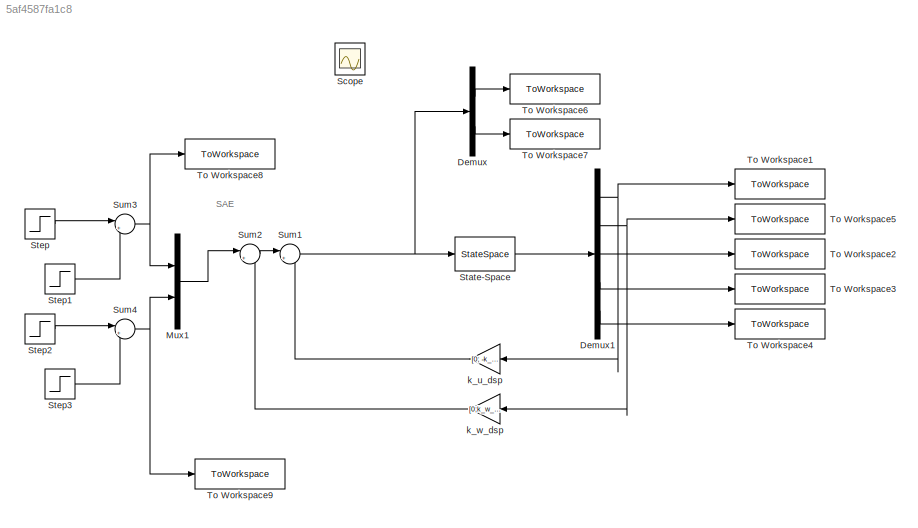
MODEL slx_5af4587fa1c8
KIND model
CONFIG AbsTol = auto
CONFIG EnableMultiTasking = off
CONFIG FixedStep = auto
CONFIG MaxStep = auto
CONFIG MinStep = auto
CONFIG RelTol = 1e-3
CONFIG SampleTimeConstraint = Unconstrained
CONFIG Solver = VariableStepAuto
CONFIG SolverName = VariableStepAuto
CONFIG StartTime = 0.0
CONFIG StopTime = 10.0
BLOCK [Demux] Demux
  Outputs = 2
  Ports = [1, 2]
BLOCK [Demux] Demux1
  Outputs = 5
  Ports = [1, 5]
BLOCK [Mux] Mux1
  DisplayOption = bar
  Inputs = 2
  Ports = [2, 1]
BLOCK [Scope] Scope
  Floating = off
  IOType = viewer
  NumInputPorts = 1
  Ports = []
  ScopeSpecificationString = Simulink.scopes.TimeScopeBlockCfg('CurrentConfiguration', extmgr.ConfigurationSet(extmgr.Configuration('Core','General UI',true),extmgr.Configuration('Core','Source UI',true),extmgr.Configuration('Sources','WiredSimulink',true),extmgr.Configuration('Visuals','Time Domain',true,'SerializedDisplays',{struct('MinYLimReal','-13.95588','MaxYLimReal','27.3534','YLabelReal','','MinYLimMag','0.00000','Max...<+1361ch>
BLOCK [StateSpace] State-Space
  A = a_h
  B = b_h_sf
  C = c_h
  D = d_h_sf
  InitialCondition = x0_h
  Ports = [1, 1]
BLOCK [Step] Step
  After = de_step
  SampleTime = 0
  Time = t_de_ini
BLOCK [Step] Step1
  After = -de_step
  SampleTime = 0
  Time = t_de_ini+t_de_step
BLOCK [Step] Step2
  After = dsp_step
  SampleTime = 0
  Time = t_dsp_ini
BLOCK [Step] Step3
  After = -dsp_step
  SampleTime = 0
  Time = t_dsp_ini+t_dsp_step
BLOCK [Sum] Sum1
  Inputs = |+-
  Ports = [2, 1]
BLOCK [Sum] Sum2
  Inputs = |+-
  Ports = [2, 1]
BLOCK [Sum] Sum3
  Inputs = |++
  Ports = [2, 1]
BLOCK [Sum] Sum4
  Inputs = |++
  Ports = [2, 1]
BLOCK [ToWorkspace] To Workspace1
  FixptAsFi = on
  MaxDataPoints = inf
  Ports = [1]
  SampleTime = -1
  VariableName = u
BLOCK [ToWorkspace] To Workspace2
  FixptAsFi = on
  MaxDataPoints = inf
  Ports = [1]
  SampleTime = -1
  VariableName = q
BLOCK [ToWorkspace] To Workspace3
  FixptAsFi = on
  MaxDataPoints = inf
  Ports = [1]
  SampleTime = -1
  VariableName = tt
BLOCK [ToWorkspace] To Workspace4
  FixptAsFi = on
  MaxDataPoints = inf
  Ports = [1]
  SampleTime = -1
  VariableName = h
BLOCK [ToWorkspace] To Workspace5
  FixptAsFi = on
  MaxDataPoints = inf
  Ports = [1]
  SampleTime = -1
  VariableName = w
BLOCK [ToWorkspace] To Workspace6
  FixptAsFi = on
  MaxDataPoints = inf
  Ports = [1]
  SampleTime = -1
  VariableName = de
BLOCK [ToWorkspace] To Workspace7
  FixptAsFi = on
  MaxDataPoints = inf
  Ports = [1]
  SampleTime = -1
  VariableName = dsp
BLOCK [ToWorkspace] To Workspace8
  FixptAsFi = on
  MaxDataPoints = inf
  Ports = [1]
  SampleTime = -1
  VariableName = de_step
BLOCK [ToWorkspace] To Workspace9
  FixptAsFi = on
  MaxDataPoints = inf
  Ports = [1]
  SampleTime = -1
  VariableName = dsp_step
BLOCK [Gain] k_u_dsp
  Gain = [0; -k_u_dsp]
  Multiplication = Matrix(K*u)
  NameLocation = top
BLOCK [Gain] k_w_dsp
  Gain = [0;k_w_dsp]
  Multiplication = Matrix(K*u)
  NameLocation = top
ANNOTATION (root): SAE
NET Demux1:1 -> To Workspace1:1, k_u_dsp:1
NET Demux1:2 -> To Workspace5:1, k_w_dsp:1
LINE Demux1:3 -> To Workspace2:1
LINE Demux1:4 -> To Workspace3:1
LINE Demux1:5 -> To Workspace4:1
LINE Demux:1 -> To Workspace6:1
LINE Demux:2 -> To Workspace7:1
LINE Mux1:1 -> Sum2:1
LINE State-Space:1 -> Demux1:1
LINE Step1:1 -> Sum3:2
LINE Step2:1 -> Sum4:1
LINE Step3:1 -> Sum4:2
LINE Step:1 -> Sum3:1
NET Sum1:1 -> Demux:1, State-Space:1
LINE Sum2:1 -> Sum1:1
NET Sum3:1 -> Mux1:1, To Workspace8:1
NET Sum4:1 -> Mux1:2, To Workspace9:1
LINE k_u_dsp:1 -> Sum1:2
LINE k_w_dsp:1 -> Sum2:2
note: NET lines group one-source signal fan-out (src -> all destinations, sorted); 1:1 wires keep LINE
